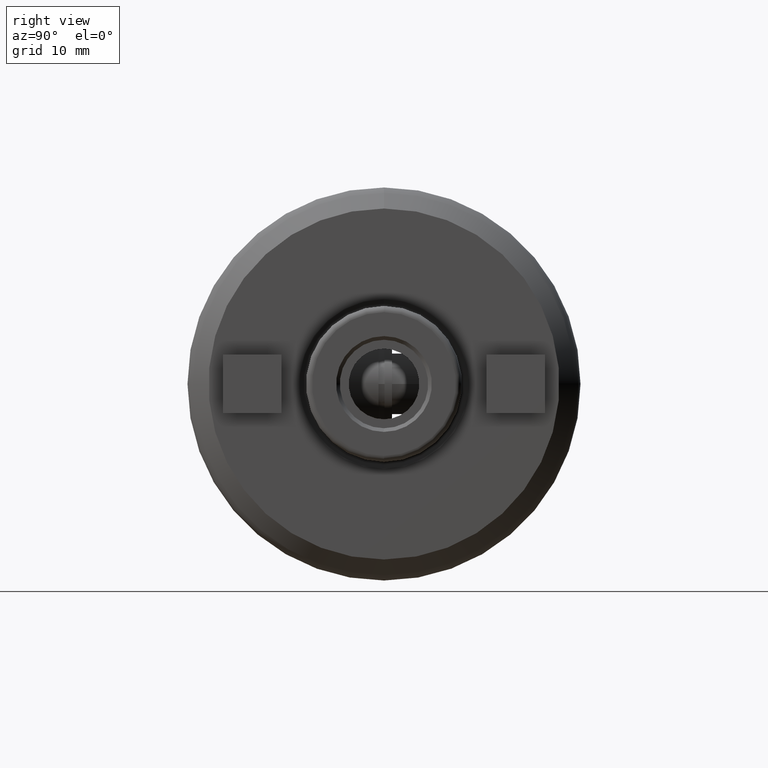
[diagram: clean part render]
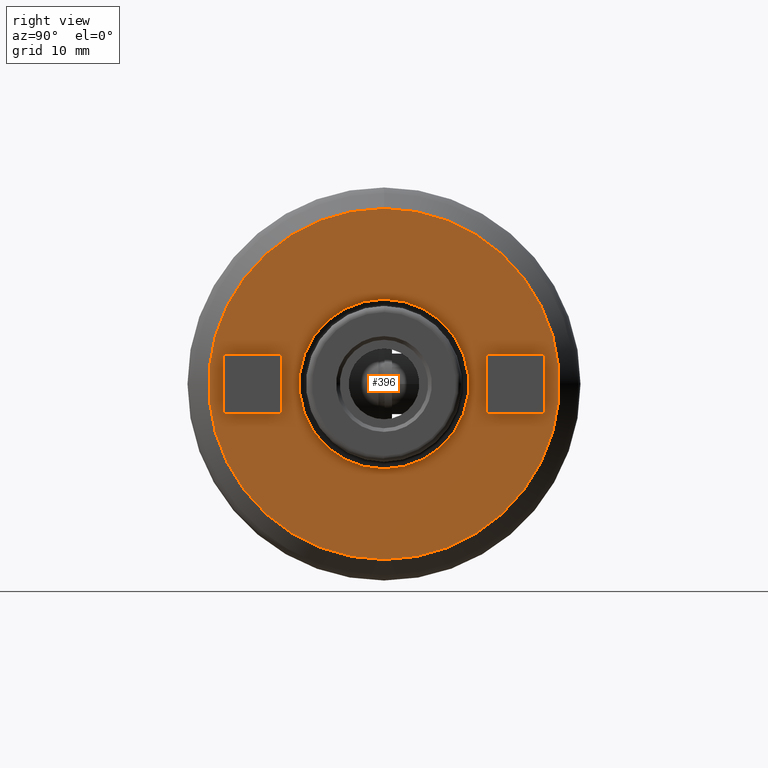
[diagram: same view with one face highlighted and labeled with its STEP entity id]
A machine part, right view. The second image highlights one B-rep face of the part: STEP entity #396.
In plain terms, the highlighted planar face has unit normal (-1, 0, 0).
Its self-contained STEP definition (entity closure, byte-faithful):
#35 = CARTESIAN_POINT ( 'NONE',  ( 59.91000000000000400, 3.655345381480766600E-015, -28.57499999999999900 ) ) ;
#38 = CARTESIAN_POINT ( 'NONE',  ( 59.91000000000001800, 0.0000000000000000000, -13.80973641030751300 ) ) ;
#50 = CARTESIAN_POINT ( 'NONE',  ( 59.91000000000001800, 1.691204949195175600E-015, 13.80973641030751300 ) ) ;
#54 = CARTESIAN_POINT ( 'NONE',  ( 59.91000000000001800, -21.43000000000000000, -4.761250000000002200 ) ) ;
#85 = CARTESIAN_POINT ( 'NONE',  ( 59.91000000000001800, 21.43000000000000000, -4.761250000000002200 ) ) ;
#140 = CIRCLE ( 'NONE', #144, 28.57499999999999900 ) ;
#142 = CIRCLE ( 'NONE', #258, 4.761249999999997800 ) ;
#144 = AXIS2_PLACEMENT_3D ( 'NONE', #527, #528, #529 ) ;
#172 = AXIS2_PLACEMENT_3D ( 'NONE', #825, #826, #827 ) ;
#229 = CIRCLE ( 'NONE', #172, 4.761249999999997800 ) ;
#258 = AXIS2_PLACEMENT_3D ( 'NONE', #822, #823, #824 ) ;
#265 = CIRCLE ( 'NONE', #284, 28.57499999999999900 ) ;
#284 = AXIS2_PLACEMENT_3D ( 'NONE', #819, #820, #821 ) ;
#349 = CIRCLE ( 'NONE', #356, 13.80973641030751300 ) ;
#356 = AXIS2_PLACEMENT_3D ( 'NONE', #582, #583, #584 ) ;
#396 = ADVANCED_FACE ( 'NONE', ( #2769, #2770, #2771, #2775 ), #2774, .F. ) ;
#462 = AXIS2_PLACEMENT_3D ( 'NONE', #4207, #4208, #4209 ) ;
#527 = CARTESIAN_POINT ( 'NONE',  ( 59.91000000000000400, 0.0000000000000000000, 0.0000000000000000000 ) ) ;
#528 = DIRECTION ( 'NONE',  ( -1.000000000000000000, -0.0000000000000000000, -0.0000000000000000000 ) ) ;
#529 = DIRECTION ( 'NONE',  ( 0.0000000000000000000, 0.0000000000000000000, 1.000000000000000000 ) ) ;
#582 = CARTESIAN_POINT ( 'NONE',  ( 59.91000000000001800, 0.0000000000000000000, 0.0000000000000000000 ) ) ;
#583 = DIRECTION ( 'NONE',  ( -1.000000000000000000, -0.0000000000000000000, -0.0000000000000000000 ) ) ;
#584 = DIRECTION ( 'NONE',  ( 0.0000000000000000000, 0.0000000000000000000, 1.000000000000000000 ) ) ;
#819 = CARTESIAN_POINT ( 'NONE',  ( 59.91000000000000400, 0.0000000000000000000, 0.0000000000000000000 ) ) ;
#820 = DIRECTION ( 'NONE',  ( -1.000000000000000000, -0.0000000000000000000, -0.0000000000000000000 ) ) ;
#821 = DIRECTION ( 'NONE',  ( 0.0000000000000000000, 0.0000000000000000000, 1.000000000000000000 ) ) ;
#822 = CARTESIAN_POINT ( 'NONE',  ( 59.91000000000001800, -21.43000000000000000, -4.119711832331695800E-015 ) ) ;
#823 = DIRECTION ( 'NONE',  ( 1.000000000000000000, -0.0000000000000000000, -0.0000000000000000000 ) ) ;
#824 = DIRECTION ( 'NONE',  ( 0.0000000000000000000, 0.0000000000000000000, -1.000000000000000000 ) ) ;
#825 = CARTESIAN_POINT ( 'NONE',  ( 59.91000000000001800, 21.43000000000000000, -4.119711832331695800E-015 ) ) ;
#826 = DIRECTION ( 'NONE',  ( 1.000000000000000000, -0.0000000000000000000, -0.0000000000000000000 ) ) ;
#827 = DIRECTION ( 'NONE',  ( 0.0000000000000000000, 0.0000000000000000000, -1.000000000000000000 ) ) ;
#1076 = AXIS2_PLACEMENT_3D ( 'NONE', #2768, #2745, #2773 ) ;
#1327 = ORIENTED_EDGE ( 'NONE', *, *, #2143, .T. ) ;
#1500 = VERTEX_POINT ( 'NONE', #35 ) ;
#1507 = VERTEX_POINT ( 'NONE', #50 ) ;
#1508 = VERTEX_POINT ( 'NONE', #38 ) ;
#1516 = VERTEX_POINT ( 'NONE', #54 ) ;
#1579 = VERTEX_POINT ( 'NONE', #85 ) ;
#1608 = VERTEX_POINT ( 'NONE', #1895 ) ;
#1611 = VERTEX_POINT ( 'NONE', #1898 ) ;
#1641 = VERTEX_POINT ( 'NONE', #2884 ) ;
#1750 = EDGE_LOOP ( 'NONE', ( #1767, #1886 ) ) ;
#1752 = EDGE_LOOP ( 'NONE', ( #1808, #1769 ) ) ;
#1758 = EDGE_LOOP ( 'NONE', ( #1327, #1849 ) ) ;
#1767 = ORIENTED_EDGE ( 'NONE', *, *, #2027, .F. ) ;
#1769 = ORIENTED_EDGE ( 'NONE', *, *, #2590, .F. ) ;
#1775 = EDGE_LOOP ( 'NONE', ( #1801, #1793 ) ) ;
#1793 = ORIENTED_EDGE ( 'NONE', *, *, #2592, .F. ) ;
#1801 = ORIENTED_EDGE ( 'NONE', *, *, #2075, .F. ) ;
#1808 = ORIENTED_EDGE ( 'NONE', *, *, #2074, .F. ) ;
#1849 = ORIENTED_EDGE ( 'NONE', *, *, #2042, .T. ) ;
#1886 = ORIENTED_EDGE ( 'NONE', *, *, #2073, .F. ) ;
#1895 = CARTESIAN_POINT ( 'NONE',  ( 59.91000000000000400, 0.0000000000000000000, 28.57499999999999900 ) ) ;
#1898 = CARTESIAN_POINT ( 'NONE',  ( 59.91000000000001800, 21.43000000000000000, 4.761249999999994200 ) ) ;
#1921 = CIRCLE ( 'NONE', #3534, 4.761249999999997800 ) ;
#2027 = EDGE_CURVE ( 'NONE', #1608, #1500, #140, .T. ) ;
#2042 = EDGE_CURVE ( 'NONE', #1507, #1508, #349, .T. ) ;
#2073 = EDGE_CURVE ( 'NONE', #1500, #1608, #265, .T. ) ;
#2074 = EDGE_CURVE ( 'NONE', #1516, #1641, #142, .T. ) ;
#2075 = EDGE_CURVE ( 'NONE', #1579, #1611, #229, .T. ) ;
#2143 = EDGE_CURVE ( 'NONE', #1508, #1507, #3499, .T. ) ;
#2491 = CIRCLE ( 'NONE', #462, 4.761249999999997800 ) ;
#2590 = EDGE_CURVE ( 'NONE', #1641, #1516, #1921, .T. ) ;
#2592 = EDGE_CURVE ( 'NONE', #1611, #1579, #2491, .T. ) ;
#2745 = DIRECTION ( 'NONE',  ( -1.000000000000000000, 0.0000000000000000000, -0.0000000000000000000 ) ) ;
#2768 = CARTESIAN_POINT ( 'NONE',  ( 59.91000000000001800, 28.57499999999999900, 0.0000000000000000000 ) ) ;
#2769 = FACE_BOUND ( 'NONE', #1775, .T. ) ;
#2770 = FACE_BOUND ( 'NONE', #1752, .T. ) ;
#2771 = FACE_OUTER_BOUND ( 'NONE', #1750, .T. ) ;
#2773 = DIRECTION ( 'NONE',  ( -0.0000000000000000000, 0.0000000000000000000, 1.000000000000000000 ) ) ;
#2774 = PLANE ( 'NONE',  #1076 ) ;
#2775 = FACE_BOUND ( 'NONE', #1758, .T. ) ;
#2884 = CARTESIAN_POINT ( 'NONE',  ( 59.91000000000001800, -21.43000000000000000, 4.761249999999994200 ) ) ;
#3476 = AXIS2_PLACEMENT_3D ( 'NONE', #3962, #3963, #3964 ) ;
#3499 = CIRCLE ( 'NONE', #3476, 13.80973641030751300 ) ;
#3534 = AXIS2_PLACEMENT_3D ( 'NONE', #4200, #4201, #4202 ) ;
#3962 = CARTESIAN_POINT ( 'NONE',  ( 59.91000000000001800, 0.0000000000000000000, 0.0000000000000000000 ) ) ;
#3963 = DIRECTION ( 'NONE',  ( -1.000000000000000000, -0.0000000000000000000, -0.0000000000000000000 ) ) ;
#3964 = DIRECTION ( 'NONE',  ( 0.0000000000000000000, 0.0000000000000000000, 1.000000000000000000 ) ) ;
#4200 = CARTESIAN_POINT ( 'NONE',  ( 59.91000000000001800, -21.43000000000000000, -4.119711832331695800E-015 ) ) ;
#4201 = DIRECTION ( 'NONE',  ( 1.000000000000000000, -0.0000000000000000000, -0.0000000000000000000 ) ) ;
#4202 = DIRECTION ( 'NONE',  ( 0.0000000000000000000, 0.0000000000000000000, -1.000000000000000000 ) ) ;
#4207 = CARTESIAN_POINT ( 'NONE',  ( 59.91000000000001800, 21.43000000000000000, -4.119711832331695800E-015 ) ) ;
#4208 = DIRECTION ( 'NONE',  ( 1.000000000000000000, -0.0000000000000000000, -0.0000000000000000000 ) ) ;
#4209 = DIRECTION ( 'NONE',  ( 0.0000000000000000000, 0.0000000000000000000, -1.000000000000000000 ) ) ;